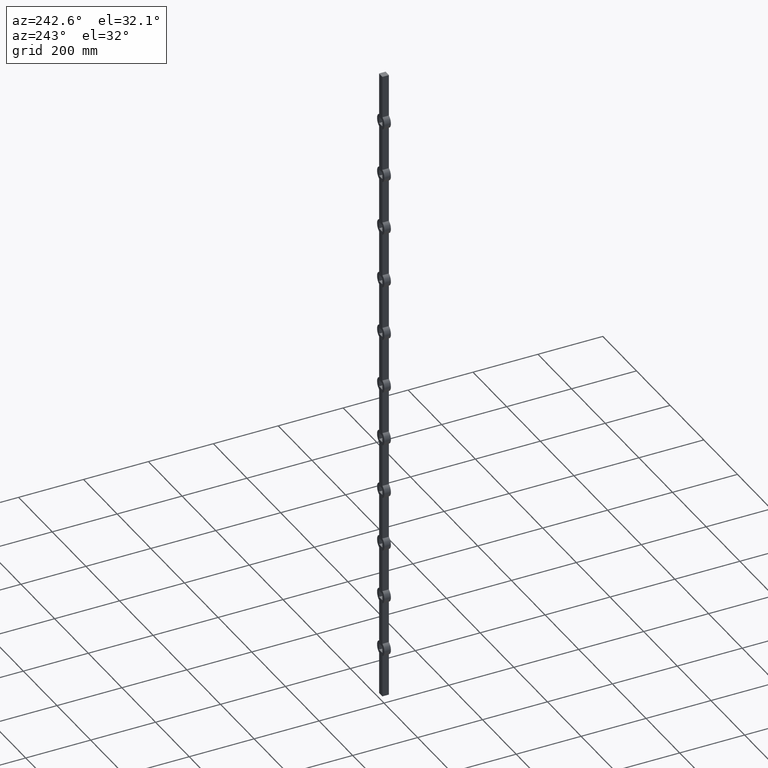
[diagram: clean part render]
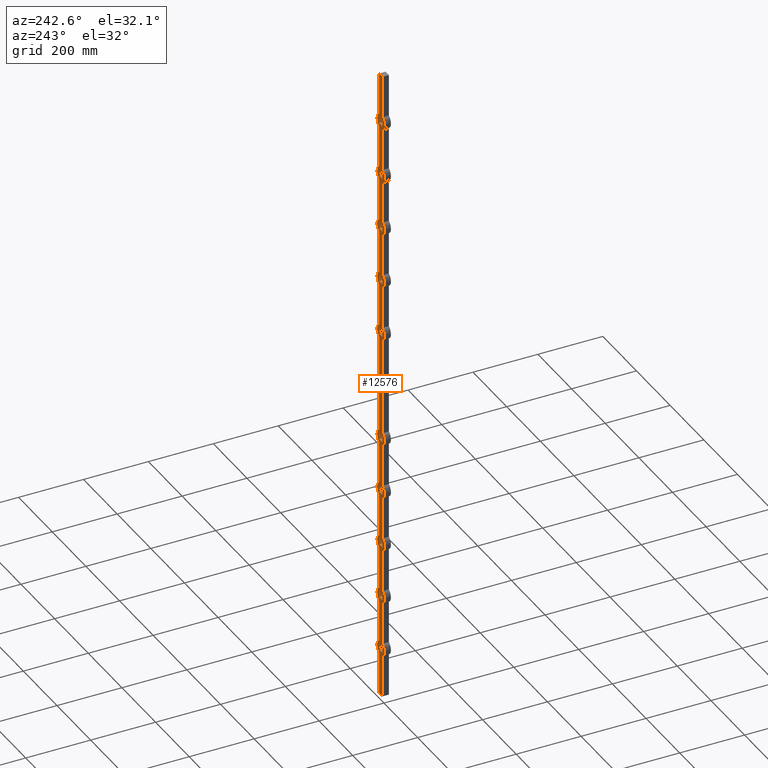
[diagram: same view with one face highlighted and labeled with its STEP entity id]
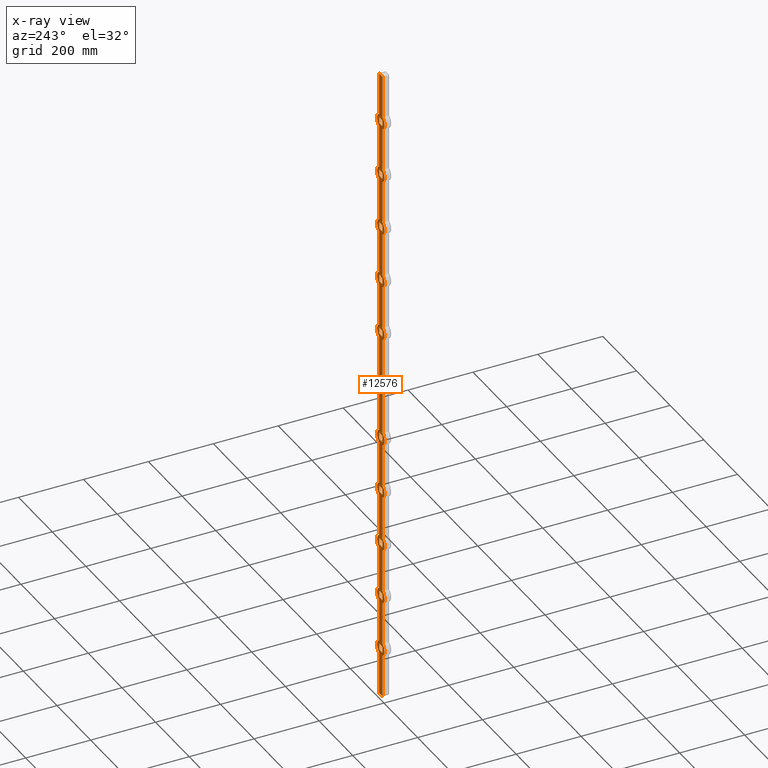
[diagram: x-ray of the same camera — body ghosted, the highlighted face saturated]
A machine part, auxiliary view. The second image highlights one B-rep face of the part: STEP entity #12576.
The next image is the same camera in x-ray: the body ghosted, the highlighted face saturated — about 0% of this face is hidden behind the body in this view.
In plain terms, the highlighted planar face has unit normal (0, -1, 0).
Its self-contained STEP definition (entity closure, byte-faithful):
#6 = CARTESIAN_POINT ( 'NONE',  ( -10.00000000000001066, 10.00000000000000000, -520.0000000000001137 ) ) ;
#15 = CARTESIAN_POINT ( 'NONE',  ( -9.999999999999998224, 10.00000000000000000, 869.5959179422653733 ) ) ;
#21 = CIRCLE ( 'NONE', #10054, 21.99999999999999289 ) ;
#22 = ORIENTED_EDGE ( 'NONE', *, *, #1915, .T. ) ;
#47 = CARTESIAN_POINT ( 'NONE',  ( -9.999999999999998224, 10.00000000000000000, 19.59591794226531647 ) ) ;
#64 = LINE ( 'NONE', #3754, #995 ) ;
#76 = EDGE_LOOP ( 'NONE', ( #5877, #10774, #7319, #6694 ) ) ;
#80 = CARTESIAN_POINT ( 'NONE',  ( -10.00000000000000888, 10.00000000000000000, 350.0000000000000000 ) ) ;
#91 = EDGE_CURVE ( 'NONE', #2908, #1591, #5186, .T. ) ;
#93 = CARTESIAN_POINT ( 'NONE',  ( 10.00000000000000533, 9.999999999999998224, -690.0000000000000000 ) ) ;
#102 = VECTOR ( 'NONE', #3751, 1000.000000000000000 ) ;
#123 = CARTESIAN_POINT ( 'NONE',  ( 9.999999999999998224, 9.999999999999998224, -830.4040820577347404 ) ) ;
#125 = CARTESIAN_POINT ( 'NONE',  ( 0.000000000000000000, 10.00000000000000000, 679.9999999999998863 ) ) ;
#147 = EDGE_CURVE ( 'NONE', #9268, #7335, #11876, .T. ) ;
#154 = CARTESIAN_POINT ( 'NONE',  ( -9.999999999999984013, 10.00000000000000000, 359.5959179422654302 ) ) ;
#234 = CARTESIAN_POINT ( 'NONE',  ( -9.999999999999998224, 9.999999999999998224, -1000.000000000000000 ) ) ;
#269 = ORIENTED_EDGE ( 'NONE', *, *, #489, .T. ) ;
#289 = ORIENTED_EDGE ( 'NONE', *, *, #6513, .F. ) ;
#291 = CARTESIAN_POINT ( 'NONE',  ( -10.00000000000000888, 10.00000000000000000, -500.0000000000001137 ) ) ;
#326 = ORIENTED_EDGE ( 'NONE', *, *, #2700, .F. ) ;
#331 = VERTEX_POINT ( 'NONE', #4124 ) ;
#336 = VERTEX_POINT ( 'NONE', #9042 ) ;
#342 = VERTEX_POINT ( 'NONE', #9125 ) ;
#360 = DIRECTION ( 'NONE',  ( -1.000000000000000000, -0.000000000000000000, -0.000000000000000000 ) ) ;
#404 = EDGE_CURVE ( 'NONE', #1836, #4101, #10203, .T. ) ;
#469 = VERTEX_POINT ( 'NONE', #7280 ) ;
#489 = EDGE_CURVE ( 'NONE', #331, #469, #12150, .T. ) ;
#533 = CARTESIAN_POINT ( 'NONE',  ( -10.00000000000001066, 10.00000000000000000, -860.0000000000002274 ) ) ;
#548 = VERTEX_POINT ( 'NONE', #9704 ) ;
#586 = LINE ( 'NONE', #1074, #12307 ) ;
#604 = LINE ( 'NONE', #4681, #10044 ) ;
#650 = FACE_BOUND ( 'NONE', #7894, .T. ) ;
#651 = CARTESIAN_POINT ( 'NONE',  ( -9.999999999999998224, 9.999999999999998224, 1000.000000000000000 ) ) ;
#666 = CARTESIAN_POINT ( 'NONE',  ( 9.999999999999998224, 9.999999999999998224, 830.4040820577345130 ) ) ;
#671 = LINE ( 'NONE', #8496, #8916 ) ;
#755 = VERTEX_POINT ( 'NONE', #11185 ) ;
#791 = CARTESIAN_POINT ( 'NONE',  ( 9.999999999999998224, 9.999999999999998224, 1000.000000000000000 ) ) ;
#792 = ORIENTED_EDGE ( 'NONE', *, *, #6119, .T. ) ;
#793 = DIRECTION ( 'NONE',  ( 0.000000000000000000, 1.000000000000000000, 0.000000000000000000 ) ) ;
#794 = VERTEX_POINT ( 'NONE', #5424 ) ;
#799 = EDGE_CURVE ( 'NONE', #2013, #6521, #11122, .T. ) ;
#830 = AXIS2_PLACEMENT_3D ( 'NONE', #2986, #4872, #12571 ) ;
#842 = VERTEX_POINT ( 'NONE', #12213 ) ;
#862 = DIRECTION ( 'NONE',  ( -8.673617379884028076E-17, -0.000000000000000000, -1.000000000000000000 ) ) ;
#873 = CARTESIAN_POINT ( 'NONE',  ( -10.00000000000000888, 10.00000000000000000, -670.0000000000000000 ) ) ;
#881 = DIRECTION ( 'NONE',  ( -1.000000000000000000, -0.000000000000000000, -0.000000000000000000 ) ) ;
#885 = CARTESIAN_POINT ( 'NONE',  ( -9.999999999999984013, 10.00000000000000000, 660.4040820577345130 ) ) ;
#889 = PLANE ( 'NONE',  #8035 ) ;
#914 = EDGE_CURVE ( 'NONE', #6564, #9441, #604, .T. ) ;
#921 = CARTESIAN_POINT ( 'NONE',  ( 0.000000000000000000, 10.00000000000000000, 510.0000000000000000 ) ) ;
#933 = EDGE_CURVE ( 'NONE', #12251, #10744, #8205, .T. ) ;
#937 = AXIS2_PLACEMENT_3D ( 'NONE', #2185, #4967, #2058 ) ;
#964 = DIRECTION ( 'NONE',  ( -0.000000000000000000, -0.000000000000000000, -1.000000000000000000 ) ) ;
#980 = CARTESIAN_POINT ( 'NONE',  ( 9.999999999999998224, 9.999999999999998224, 1000.000000000000000 ) ) ;
#995 = VECTOR ( 'NONE', #8671, 1000.000000000000000 ) ;
#1037 = CARTESIAN_POINT ( 'NONE',  ( 10.00000000000000888, 10.00000000000000000, -840.0000000000002274 ) ) ;
#1049 = CARTESIAN_POINT ( 'NONE',  ( 0.000000000000000000, 10.00000000000000000, 850.0000000000000000 ) ) ;
#1069 = EDGE_CURVE ( 'NONE', #10219, #10292, #6548, .T. ) ;
#1074 = CARTESIAN_POINT ( 'NONE',  ( -9.999999999999998224, 9.999999999999998224, 1000.000000000000000 ) ) ;
#1079 = DIRECTION ( 'NONE',  ( -8.673617379884028076E-17, -0.000000000000000000, -1.000000000000000000 ) ) ;
#1105 = VERTEX_POINT ( 'NONE', #2823 ) ;
#1125 = DIRECTION ( 'NONE',  ( -0.000000000000000000, -0.000000000000000000, -1.000000000000000000 ) ) ;
#1128 = ORIENTED_EDGE ( 'NONE', *, *, #1199, .F. ) ;
#1163 = VERTEX_POINT ( 'NONE', #10730 ) ;
#1199 = EDGE_CURVE ( 'NONE', #1105, #6564, #4881, .T. ) ;
#1211 = CARTESIAN_POINT ( 'NONE',  ( 0.000000000000000000, 10.00000000000000000, -170.0000000000000284 ) ) ;
#1230 = ORIENTED_EDGE ( 'NONE', *, *, #1069, .F. ) ;
#1247 = EDGE_CURVE ( 'NONE', #842, #11132, #586, .T. ) ;
#1252 = VERTEX_POINT ( 'NONE', #80 ) ;
#1264 = ORIENTED_EDGE ( 'NONE', *, *, #3687, .T. ) ;
#1287 = VERTEX_POINT ( 'NONE', #6098 ) ;
#1304 = ORIENTED_EDGE ( 'NONE', *, *, #9949, .T. ) ;
#1424 = AXIS2_PLACEMENT_3D ( 'NONE', #6005, #10036, #2293 ) ;
#1426 = EDGE_CURVE ( 'NONE', #12622, #9033, #6880, .T. ) ;
#1504 = VECTOR ( 'NONE', #2701, 1000.000000000000000 ) ;
#1534 = VERTEX_POINT ( 'NONE', #1037 ) ;
#1542 = VERTEX_POINT ( 'NONE', #10817 ) ;
#1591 = VERTEX_POINT ( 'NONE', #93 ) ;
#1615 = VECTOR ( 'NONE', #11307, 1000.000000000000000 ) ;
#1627 = VECTOR ( 'NONE', #7764, 1000.000000000000000 ) ;
#1633 = VERTEX_POINT ( 'NONE', #6070 ) ;
#1635 = VERTEX_POINT ( 'NONE', #7050 ) ;
#1650 = ORIENTED_EDGE ( 'NONE', *, *, #7482, .T. ) ;
#1656 = ORIENTED_EDGE ( 'NONE', *, *, #4942, .T. ) ;
#1685 = DIRECTION ( 'NONE',  ( 0.000000000000000000, 1.000000000000000000, 0.000000000000000000 ) ) ;
#1703 = ORIENTED_EDGE ( 'NONE', *, *, #5218, .F. ) ;
#1716 = ORIENTED_EDGE ( 'NONE', *, *, #9656, .F. ) ;
#1719 = EDGE_CURVE ( 'NONE', #10984, #4602, #6108, .T. ) ;
#1737 = EDGE_LOOP ( 'NONE', ( #10340, #1716, #12464, #9602 ) ) ;
#1751 = VECTOR ( 'NONE', #12327, 1000.000000000000000 ) ;
#1767 = LINE ( 'NONE', #3762, #8279 ) ;
#1798 = CARTESIAN_POINT ( 'NONE',  ( 9.999999999999998224, 9.999999999999998224, 1000.000000000000000 ) ) ;
#1800 = CARTESIAN_POINT ( 'NONE',  ( 10.00000000000000888, 10.00000000000000000, -500.0000000000001137 ) ) ;
#1834 = CARTESIAN_POINT ( 'NONE',  ( -9.999999999999998224, 9.999999999999998224, 1000.000000000000000 ) ) ;
#1836 = VERTEX_POINT ( 'NONE', #12052 ) ;
#1871 = DIRECTION ( 'NONE',  ( -0.000000000000000000, -0.000000000000000000, -1.000000000000000000 ) ) ;
#1873 = ORIENTED_EDGE ( 'NONE', *, *, #5207, .F. ) ;
#1894 = EDGE_CURVE ( 'NONE', #7240, #6918, #10641, .T. ) ;
#1899 = DIRECTION ( 'NONE',  ( 0.000000000000000000, -1.000000000000000000, 0.000000000000000000 ) ) ;
#1910 = LINE ( 'NONE', #2104, #4347 ) ;
#1915 = EDGE_CURVE ( 'NONE', #3246, #1633, #5462, .T. ) ;
#1934 = EDGE_CURVE ( 'NONE', #7589, #12622, #9743, .T. ) ;
#1966 = ORIENTED_EDGE ( 'NONE', *, *, #3924, .F. ) ;
#1972 = CARTESIAN_POINT ( 'NONE',  ( -10.00000000000000888, 10.00000000000000000, -160.0000000000000284 ) ) ;
#2012 = VECTOR ( 'NONE', #1079, 1000.000000000000000 ) ;
#2013 = VERTEX_POINT ( 'NONE', #123 ) ;
#2054 = DIRECTION ( 'NONE',  ( 8.673617379884028076E-17, 0.000000000000000000, 1.000000000000000000 ) ) ;
#2056 = LINE ( 'NONE', #533, #3412 ) ;
#2058 = DIRECTION ( 'NONE',  ( 0.000000000000000000, 0.000000000000000000, 1.000000000000000000 ) ) ;
#2064 = EDGE_LOOP ( 'NONE', ( #10887, #7818, #7201, #7392 ) ) ;
#2074 = EDGE_CURVE ( 'NONE', #1534, #10793, #9891, .T. ) ;
#2086 = FACE_BOUND ( 'NONE', #7606, .T. ) ;
#2104 = CARTESIAN_POINT ( 'NONE',  ( -10.00000000000001066, 10.00000000000000000, 499.9999999999999432 ) ) ;
#2106 = VERTEX_POINT ( 'NONE', #8089 ) ;
#2112 = DIRECTION ( 'NONE',  ( 1.000000000000000000, 0.000000000000000000, 0.000000000000000000 ) ) ;
#2118 = AXIS2_PLACEMENT_3D ( 'NONE', #8196, #2408, #9183 ) ;
#2137 = CARTESIAN_POINT ( 'NONE',  ( 10.00000000000000533, 9.999999999999998224, -520.0000000000000000 ) ) ;
#2144 = CARTESIAN_POINT ( 'NONE',  ( -9.999999999999998224, 9.999999999999998224, 1000.000000000000000 ) ) ;
#2170 = ORIENTED_EDGE ( 'NONE', *, *, #1426, .T. ) ;
#2182 = ORIENTED_EDGE ( 'NONE', *, *, #8909, .T. ) ;
#2185 = CARTESIAN_POINT ( 'NONE',  ( 0.000000000000000000, 10.00000000000000000, -510.0000000000001137 ) ) ;
#2233 = FACE_BOUND ( 'NONE', #6440, .T. ) ;
#2234 = CARTESIAN_POINT ( 'NONE',  ( 9.999999999999998224, 9.999999999999998224, 1000.000000000000000 ) ) ;
#2247 = DIRECTION ( 'NONE',  ( -1.000000000000000000, -0.000000000000000000, -0.000000000000000000 ) ) ;
#2254 = LINE ( 'NONE', #3551, #1615 ) ;
#2263 = CARTESIAN_POINT ( 'NONE',  ( -10.00000000000000888, 10.00000000000000000, 520.0000000000000000 ) ) ;
#2273 = ORIENTED_EDGE ( 'NONE', *, *, #5063, .F. ) ;
#2278 = VECTOR ( 'NONE', #6091, 1000.000000000000000 ) ;
#2287 = VERTEX_POINT ( 'NONE', #10142 ) ;
#2291 = CARTESIAN_POINT ( 'NONE',  ( -9.999999999999998224, 9.999999999999998224, 1000.000000000000000 ) ) ;
#2293 = DIRECTION ( 'NONE',  ( 0.000000000000000000, 0.000000000000000000, 1.000000000000000000 ) ) ;
#2309 = DIRECTION ( 'NONE',  ( 1.000000000000000000, 0.000000000000000000, 0.000000000000000000 ) ) ;
#2339 = EDGE_LOOP ( 'NONE', ( #4428, #326, #1966, #11974 ) ) ;
#2374 = VECTOR ( 'NONE', #7251, 1000.000000000000000 ) ;
#2408 = DIRECTION ( 'NONE',  ( 0.000000000000000000, 1.000000000000000000, 0.000000000000000000 ) ) ;
#2413 = VERTEX_POINT ( 'NONE', #885 ) ;
#2417 = LINE ( 'NONE', #9550, #9839 ) ;
#2418 = VECTOR ( 'NONE', #2247, 1000.000000000000000 ) ;
#2437 = DIRECTION ( 'NONE',  ( -0.000000000000000000, -0.000000000000000000, -1.000000000000000000 ) ) ;
#2441 = DIRECTION ( 'NONE',  ( 1.000000000000000000, 0.000000000000000000, 0.000000000000000000 ) ) ;
#2462 = DIRECTION ( 'NONE',  ( -1.000000000000000000, -0.000000000000000000, -0.000000000000000000 ) ) ;
#2475 = DIRECTION ( 'NONE',  ( -1.000000000000000000, -0.000000000000000000, -0.000000000000000000 ) ) ;
#2479 = VECTOR ( 'NONE', #4701, 1000.000000000000000 ) ;
#2497 = AXIS2_PLACEMENT_3D ( 'NONE', #921, #793, #3756 ) ;
#2504 = DIRECTION ( 'NONE',  ( -1.000000000000000000, -0.000000000000000000, -0.000000000000000000 ) ) ;
#2514 = EDGE_CURVE ( 'NONE', #1542, #10371, #6390, .T. ) ;
#2523 = LINE ( 'NONE', #11417, #1751 ) ;
#2539 = CARTESIAN_POINT ( 'NONE',  ( -10.00000000000001066, 10.00000000000000000, 840.0000000000000000 ) ) ;
#2560 = LINE ( 'NONE', #4187, #12542 ) ;
#2602 = CARTESIAN_POINT ( 'NONE',  ( 9.999999999999998224, 9.999999999999998224, 19.59591794226531647 ) ) ;
#2676 = VECTOR ( 'NONE', #862, 1000.000000000000000 ) ;
#2690 = VERTEX_POINT ( 'NONE', #6656 ) ;
#2693 = VECTOR ( 'NONE', #964, 1000.000000000000000 ) ;
#2700 = EDGE_CURVE ( 'NONE', #10495, #9701, #3662, .T. ) ;
#2701 = DIRECTION ( 'NONE',  ( -1.000000000000000000, -0.000000000000000000, -0.000000000000000000 ) ) ;
#2709 = VECTOR ( 'NONE', #12358, 1000.000000000000000 ) ;
#2732 = LINE ( 'NONE', #9551, #102 ) ;
#2810 = CARTESIAN_POINT ( 'NONE',  ( -10.00000000000001066, 10.00000000000000000, -10.00000000000012079 ) ) ;
#2823 = CARTESIAN_POINT ( 'NONE',  ( -10.00000000000000888, 10.00000000000000000, 860.0000000000000000 ) ) ;
#2847 = VECTOR ( 'NONE', #7499, 1000.000000000000000 ) ;
#2859 = CARTESIAN_POINT ( 'NONE',  ( 10.00000000000000711, 10.00000000000000000, 329.9999999999999432 ) ) ;
#2878 = VECTOR ( 'NONE', #1125, 1000.000000000000000 ) ;
#2879 = CARTESIAN_POINT ( 'NONE',  ( 10.00000000000000711, 10.00000000000000000, 499.9999999999999432 ) ) ;
#2880 = VERTEX_POINT ( 'NONE', #11977 ) ;
#2899 = ORIENTED_EDGE ( 'NONE', *, *, #147, .F. ) ;
#2908 = VERTEX_POINT ( 'NONE', #3310 ) ;
#2911 = CARTESIAN_POINT ( 'NONE',  ( -10.00000000000000888, 10.00000000000000000, 179.9999999999999432 ) ) ;
#2969 = EDGE_LOOP ( 'NONE', ( #3320, #2899, #8113, #4790 ) ) ;
#2972 = DIRECTION ( 'NONE',  ( -8.673617379884028076E-17, -0.000000000000000000, -1.000000000000000000 ) ) ;
#2982 = CARTESIAN_POINT ( 'NONE',  ( -10.00000000000001066, 10.00000000000000000, 669.9999999999998863 ) ) ;
#2986 = CARTESIAN_POINT ( 'NONE',  ( 0.000000000000000000, 10.00000000000000000, 339.9999999999999432 ) ) ;
#2998 = LINE ( 'NONE', #12279, #11027 ) ;
#3001 = VECTOR ( 'NONE', #9887, 1000.000000000000000 ) ;
#3015 = CARTESIAN_POINT ( 'NONE',  ( -10.00000000000001066, 10.00000000000000000, -350.0000000000002274 ) ) ;
#3023 = LINE ( 'NONE', #12270, #2709 ) ;
#3036 = LINE ( 'NONE', #9523, #10580 ) ;
#3049 = VECTOR ( 'NONE', #2112, 1000.000000000000000 ) ;
#3061 = DIRECTION ( 'NONE',  ( -8.673617379884028076E-17, -0.000000000000000000, -1.000000000000000000 ) ) ;
#3071 = DIRECTION ( 'NONE',  ( 0.000000000000000000, 1.000000000000000000, 0.000000000000000000 ) ) ;
#3121 = EDGE_CURVE ( 'NONE', #7335, #2106, #9717, .T. ) ;
#3142 = CARTESIAN_POINT ( 'NONE',  ( -10.00000000000001066, 10.00000000000000000, 669.9999999999998863 ) ) ;
#3146 = LINE ( 'NONE', #651, #12201 ) ;
#3155 = CIRCLE ( 'NONE', #11676, 21.99999999999999289 ) ;
#3205 = ORIENTED_EDGE ( 'NONE', *, *, #10785, .F. ) ;
#3206 = DIRECTION ( 'NONE',  ( -0.000000000000000000, -0.000000000000000000, -1.000000000000000000 ) ) ;
#3243 = AXIS2_PLACEMENT_3D ( 'NONE', #12400, #1685, #9496 ) ;
#3246 = VERTEX_POINT ( 'NONE', #3753 ) ;
#3272 = CARTESIAN_POINT ( 'NONE',  ( 0.000000000000000000, 10.00000000000000000, -680.0000000000000000 ) ) ;
#3290 = VECTOR ( 'NONE', #11771, 1000.000000000000000 ) ;
#3310 = CARTESIAN_POINT ( 'NONE',  ( 10.00000000000000888, 10.00000000000000000, -670.0000000000000000 ) ) ;
#3312 = VECTOR ( 'NONE', #7677, 1000.000000000000000 ) ;
#3315 = LINE ( 'NONE', #11945, #10570 ) ;
#3320 = ORIENTED_EDGE ( 'NONE', *, *, #3121, .F. ) ;
#3339 = LINE ( 'NONE', #7953, #2418 ) ;
#3360 = ORIENTED_EDGE ( 'NONE', *, *, #3776, .T. ) ;
#3364 = DIRECTION ( 'NONE',  ( 0.000000000000000000, 1.000000000000000000, 0.000000000000000000 ) ) ;
#3367 = CARTESIAN_POINT ( 'NONE',  ( -10.00000000000000888, 10.00000000000000000, -330.0000000000001705 ) ) ;
#3382 = EDGE_LOOP ( 'NONE', ( #10378, #3639, #10628, #7144 ) ) ;
#3386 = DIRECTION ( 'NONE',  ( -1.000000000000000000, -0.000000000000000000, -0.000000000000000000 ) ) ;
#3393 = AXIS2_PLACEMENT_3D ( 'NONE', #7453, #3705, #5667 ) ;
#3412 = VECTOR ( 'NONE', #3386, 1000.000000000000000 ) ;
#3421 = EDGE_LOOP ( 'NONE', ( #4502, #6684, #1230, #12149, #7266, #10933, #10930, #1656, #7332, #22, #2273, #4583, #5362, #3910, #8202, #12057, #5990, #8544, #8826, #4899, #3205, #8948, #1873, #7516, #3995, #7598, #2182, #3360, #792, #1650, #5247, #1264, #8216, #10150, #3844, #7438, #8438, #4898, #3848, #269, #12317, #3574, #4622, #2170, #7092, #8226, #1304, #10790 ) ) ;
#3454 = EDGE_LOOP ( 'NONE', ( #7915, #10278, #1703, #11301 ) ) ;
#3457 = CARTESIAN_POINT ( 'NONE',  ( -9.999999999999998224, 9.999999999999998224, 1000.000000000000000 ) ) ;
#3510 = VERTEX_POINT ( 'NONE', #10376 ) ;
#3519 = CARTESIAN_POINT ( 'NONE',  ( 9.999999999999998224, 9.999999999999998224, -699.5959179422654870 ) ) ;
#3543 = VERTEX_POINT ( 'NONE', #7374 ) ;
#3550 = VECTOR ( 'NONE', #2475, 1000.000000000000000 ) ;
#3551 = CARTESIAN_POINT ( 'NONE',  ( 9.999999999999998224, 9.999999999999998224, 1000.000000000000000 ) ) ;
#3566 = CARTESIAN_POINT ( 'NONE',  ( -9.999999999999984013, 10.00000000000000000, -869.5959179422656007 ) ) ;
#3574 = ORIENTED_EDGE ( 'NONE', *, *, #12114, .T. ) ;
#3639 = ORIENTED_EDGE ( 'NONE', *, *, #5724, .F. ) ;
#3643 = DIRECTION ( 'NONE',  ( -1.000000000000000000, -0.000000000000000000, -0.000000000000000000 ) ) ;
#3662 = LINE ( 'NONE', #9653, #11101 ) ;
#3663 = DIRECTION ( 'NONE',  ( -0.000000000000000000, -0.000000000000000000, -1.000000000000000000 ) ) ;
#3672 = VERTEX_POINT ( 'NONE', #5746 ) ;
#3683 = DIRECTION ( 'NONE',  ( -8.673617379884028076E-17, -0.000000000000000000, -1.000000000000000000 ) ) ;
#3685 = DIRECTION ( 'NONE',  ( 0.000000000000000000, 1.000000000000000000, 0.000000000000000000 ) ) ;
#3687 = EDGE_CURVE ( 'NONE', #9611, #794, #5597, .T. ) ;
#3705 = DIRECTION ( 'NONE',  ( 0.000000000000000000, 1.000000000000000000, 0.000000000000000000 ) ) ;
#3750 = CARTESIAN_POINT ( 'NONE',  ( -9.999999999999984013, 10.00000000000000000, -699.5959179422654870 ) ) ;
#3751 = DIRECTION ( 'NONE',  ( -1.000000000000000000, -0.000000000000000000, -0.000000000000000000 ) ) ;
#3753 = CARTESIAN_POINT ( 'NONE',  ( -10.00000000000000178, 10.00000000000000000, -189.5959179422654586 ) ) ;
#3754 = CARTESIAN_POINT ( 'NONE',  ( -10.00000000000000888, 10.00000000000000000, -500.0000000000001137 ) ) ;
#3756 = DIRECTION ( 'NONE',  ( 0.000000000000000000, 0.000000000000000000, 1.000000000000000000 ) ) ;
#3758 = DIRECTION ( 'NONE',  ( -0.000000000000000000, -0.000000000000000000, -1.000000000000000000 ) ) ;
#3761 = LINE ( 'NONE', #3457, #9685 ) ;
#3762 = CARTESIAN_POINT ( 'NONE',  ( -10.00000000000001066, 10.00000000000000000, -860.0000000000002274 ) ) ;
#3776 = EDGE_CURVE ( 'NONE', #10966, #8977, #7722, .T. ) ;
#3777 = DIRECTION ( 'NONE',  ( -1.000000000000000000, -0.000000000000000000, -0.000000000000000000 ) ) ;
#3796 = DIRECTION ( 'NONE',  ( 1.000000000000000000, 0.000000000000000000, 0.000000000000000000 ) ) ;
#3844 = ORIENTED_EDGE ( 'NONE', *, *, #10868, .T. ) ;
#3848 = ORIENTED_EDGE ( 'NONE', *, *, #5201, .T. ) ;
#3900 = LINE ( 'NONE', #6631, #2847 ) ;
#3902 = DIRECTION ( 'NONE',  ( 0.000000000000000000, -0.000000000000000000, -1.000000000000000000 ) ) ;
#3904 = VERTEX_POINT ( 'NONE', #4799 ) ;
#3910 = ORIENTED_EDGE ( 'NONE', *, *, #5398, .T. ) ;
#3924 = EDGE_CURVE ( 'NONE', #11293, #10495, #4248, .T. ) ;
#3928 = DIRECTION ( 'NONE',  ( 0.000000000000000000, 1.000000000000000000, 0.000000000000000000 ) ) ;
#3939 = CARTESIAN_POINT ( 'NONE',  ( 0.000000000000000000, 10.00000000000000000, 850.0000000000000000 ) ) ;
#3941 = EDGE_CURVE ( 'NONE', #4602, #10356, #2732, .T. ) ;
#3946 = EDGE_CURVE ( 'NONE', #548, #2880, #9390, .T. ) ;
#3981 = CARTESIAN_POINT ( 'NONE',  ( -9.999999999999984013, 10.00000000000000000, -320.4040820577347404 ) ) ;
#3995 = ORIENTED_EDGE ( 'NONE', *, *, #11678, .T. ) ;
#4012 = EDGE_CURVE ( 'NONE', #4221, #9268, #5583, .T. ) ;
#4040 = AXIS2_PLACEMENT_3D ( 'NONE', #10554, #7797, #4788 ) ;
#4051 = DIRECTION ( 'NONE',  ( 0.000000000000000000, 0.000000000000000000, 1.000000000000000000 ) ) ;
#4101 = VERTEX_POINT ( 'NONE', #10776 ) ;
#4108 = EDGE_CURVE ( 'NONE', #8502, #9952, #11856, .T. ) ;
#4118 = DIRECTION ( 'NONE',  ( 1.000000000000000000, 0.000000000000000000, 0.000000000000000000 ) ) ;
#4124 = CARTESIAN_POINT ( 'NONE',  ( 9.999999999999998224, 9.999999999999998224, -320.4040820577347404 ) ) ;
#4186 = VERTEX_POINT ( 'NONE', #234 ) ;
#4187 = CARTESIAN_POINT ( 'NONE',  ( 9.999999999999998224, 9.999999999999998224, 1000.000000000000000 ) ) ;
#4193 = VECTOR ( 'NONE', #2309, 1000.000000000000000 ) ;
#4196 = DIRECTION ( 'NONE',  ( 1.000000000000000000, 0.000000000000000000, 0.000000000000000000 ) ) ;
#4201 = AXIS2_PLACEMENT_3D ( 'NONE', #1211, #10159, #12178 ) ;
#4202 = VECTOR ( 'NONE', #2054, 1000.000000000000000 ) ;
#4221 = VERTEX_POINT ( 'NONE', #3367 ) ;
#4237 = VECTOR ( 'NONE', #6861, 1000.000000000000000 ) ;
#4248 = LINE ( 'NONE', #1972, #5902 ) ;
#4297 = AXIS2_PLACEMENT_3D ( 'NONE', #125, #3071, #6107 ) ;
#4306 = CIRCLE ( 'NONE', #4040, 22.00000000000002132 ) ;
#4308 = CARTESIAN_POINT ( 'NONE',  ( -10.00000000000000888, 10.00000000000000000, 350.0000000000000000 ) ) ;
#4347 = VECTOR ( 'NONE', #10729, 1000.000000000000000 ) ;
#4381 = AXIS2_PLACEMENT_3D ( 'NONE', #4903, #8633, #11722 ) ;
#4384 = CARTESIAN_POINT ( 'NONE',  ( 10.00000000000000711, 10.00000000000000000, 159.9999999999999147 ) ) ;
#4399 = CARTESIAN_POINT ( 'NONE',  ( -9.999999999999984013, 10.00000000000000000, 490.4040820577345698 ) ) ;
#4400 = EDGE_CURVE ( 'NONE', #9578, #12174, #9080, .T. ) ;
#4402 = VERTEX_POINT ( 'NONE', #4660 ) ;
#4422 = CARTESIAN_POINT ( 'NONE',  ( 10.00000000000000888, 10.00000000000000000, 9.999999999999896971 ) ) ;
#4428 = ORIENTED_EDGE ( 'NONE', *, *, #11091, .F. ) ;
#4433 = DIRECTION ( 'NONE',  ( 0.000000000000000000, 0.000000000000000000, 1.000000000000000000 ) ) ;
#4462 = CARTESIAN_POINT ( 'NONE',  ( 9.999999999999998224, 9.999999999999998224, 1000.000000000000000 ) ) ;
#4465 = DIRECTION ( 'NONE',  ( -0.000000000000000000, -0.000000000000000000, -1.000000000000000000 ) ) ;
#4481 = FACE_BOUND ( 'NONE', #2339, .T. ) ;
#4495 = CARTESIAN_POINT ( 'NONE',  ( -10.00000000000001066, 10.00000000000000000, -10.00000000000012079 ) ) ;
#4502 = ORIENTED_EDGE ( 'NONE', *, *, #11398, .F. ) ;
#4583 = ORIENTED_EDGE ( 'NONE', *, *, #4400, .T. ) ;
#4602 = VERTEX_POINT ( 'NONE', #2137 ) ;
#4622 = ORIENTED_EDGE ( 'NONE', *, *, #1934, .T. ) ;
#4641 = VECTOR ( 'NONE', #2437, 1000.000000000000000 ) ;
#4644 = FACE_BOUND ( 'NONE', #3382, .T. ) ;
#4660 = CARTESIAN_POINT ( 'NONE',  ( -9.999999999999984013, 10.00000000000000000, -529.5959179422656007 ) ) ;
#4681 = CARTESIAN_POINT ( 'NONE',  ( 10.00000000000000711, 10.00000000000000000, 840.0000000000000000 ) ) ;
#4684 = LINE ( 'NONE', #2982, #9544 ) ;
#4701 = DIRECTION ( 'NONE',  ( -8.673617379884028076E-17, -0.000000000000000000, -1.000000000000000000 ) ) ;
#4728 = CARTESIAN_POINT ( 'NONE',  ( -10.00000000000000888, 10.00000000000000000, 9.999999999999896971 ) ) ;
#4788 = DIRECTION ( 'NONE',  ( 0.000000000000000000, 0.000000000000000000, 1.000000000000000000 ) ) ;
#4790 = ORIENTED_EDGE ( 'NONE', *, *, #8302, .F. ) ;
#4793 = CARTESIAN_POINT ( 'NONE',  ( 0.000000000000000000, 10.00000000000000000, -1.110223024625156540E-13 ) ) ;
#4799 = CARTESIAN_POINT ( 'NONE',  ( -10.00000000000001066, 10.00000000000000000, -180.0000000000000568 ) ) ;
#4805 = EDGE_CURVE ( 'NONE', #10032, #7592, #5707, .T. ) ;
#4840 = VERTEX_POINT ( 'NONE', #8814 ) ;
#4841 = DIRECTION ( 'NONE',  ( 0.000000000000000000, 0.000000000000000000, 1.000000000000000000 ) ) ;
#4872 = DIRECTION ( 'NONE',  ( 0.000000000000000000, 1.000000000000000000, 0.000000000000000000 ) ) ;
#4881 = LINE ( 'NONE', #5785, #12007 ) ;
#4893 = DIRECTION ( 'NONE',  ( 0.000000000000000000, 1.000000000000000000, 0.000000000000000000 ) ) ;
#4898 = ORIENTED_EDGE ( 'NONE', *, *, #7488, .T. ) ;
#4899 = ORIENTED_EDGE ( 'NONE', *, *, #9388, .T. ) ;
#4903 = CARTESIAN_POINT ( 'NONE',  ( 0.000000000000000000, 10.00000000000000000, 339.9999999999999432 ) ) ;
#4940 = CARTESIAN_POINT ( 'NONE',  ( 9.999999999999998224, 9.999999999999998224, -529.5959179422656007 ) ) ;
#4941 = FACE_BOUND ( 'NONE', #2064, .T. ) ;
#4942 = EDGE_CURVE ( 'NONE', #842, #8040, #5109, .T. ) ;
#4949 = LINE ( 'NONE', #4462, #4641 ) ;
#4967 = DIRECTION ( 'NONE',  ( 0.000000000000000000, 1.000000000000000000, 0.000000000000000000 ) ) ;
#4990 = EDGE_CURVE ( 'NONE', #6250, #1252, #11492, .T. ) ;
#5010 = DIRECTION ( 'NONE',  ( 0.000000000000000000, 1.000000000000000000, 0.000000000000000000 ) ) ;
#5011 = CARTESIAN_POINT ( 'NONE',  ( 0.000000000000000000, 10.00000000000000000, -170.0000000000000284 ) ) ;
#5063 = EDGE_CURVE ( 'NONE', #9578, #1633, #10409, .T. ) ;
#5081 = AXIS2_PLACEMENT_3D ( 'NONE', #5011, #3928, #10830 ) ;
#5098 = LINE ( 'NONE', #1834, #2693 ) ;
#5099 = VECTOR ( 'NONE', #3643, 1000.000000000000000 ) ;
#5109 = CIRCLE ( 'NONE', #1424, 22.00000000000002132 ) ;
#5134 = LINE ( 'NONE', #2291, #2278 ) ;
#5186 = LINE ( 'NONE', #12365, #2479 ) ;
#5190 = VECTOR ( 'NONE', #1871, 1000.000000000000000 ) ;
#5201 = EDGE_CURVE ( 'NONE', #9605, #331, #671, .T. ) ;
#5207 = EDGE_CURVE ( 'NONE', #7935, #7592, #5098, .T. ) ;
#5209 = CARTESIAN_POINT ( 'NONE',  ( -10.00000000000000888, 10.00000000000000000, 520.0000000000000000 ) ) ;
#5218 = EDGE_CURVE ( 'NONE', #342, #2908, #6020, .T. ) ;
#5222 = EDGE_CURVE ( 'NONE', #10732, #10984, #64, .T. ) ;
#5237 = LINE ( 'NONE', #2859, #2676 ) ;
#5247 = ORIENTED_EDGE ( 'NONE', *, *, #5377, .T. ) ;
#5264 = LINE ( 'NONE', #9721, #11953 ) ;
#5342 = ORIENTED_EDGE ( 'NONE', *, *, #5222, .F. ) ;
#5343 = CARTESIAN_POINT ( 'NONE',  ( -9.999999999999998224, 10.00000000000000000, 830.4040820577345130 ) ) ;
#5344 = LINE ( 'NONE', #3015, #10208 ) ;
#5349 = DIRECTION ( 'NONE',  ( 0.000000000000000000, 1.000000000000000000, 0.000000000000000000 ) ) ;
#5359 = EDGE_CURVE ( 'NONE', #10099, #11008, #7989, .T. ) ;
#5362 = ORIENTED_EDGE ( 'NONE', *, *, #12195, .F. ) ;
#5368 = CARTESIAN_POINT ( 'NONE',  ( 9.999999999999998224, 9.999999999999998224, -869.5959179422656007 ) ) ;
#5377 = EDGE_CURVE ( 'NONE', #3510, #9611, #7519, .T. ) ;
#5398 = EDGE_CURVE ( 'NONE', #336, #6918, #3155, .T. ) ;
#5424 = CARTESIAN_POINT ( 'NONE',  ( 9.999999999999998224, 9.999999999999998224, 320.4040820577345130 ) ) ;
#5442 = ORIENTED_EDGE ( 'NONE', *, *, #5898, .F. ) ;
#5462 = CIRCLE ( 'NONE', #4201, 21.99999999999999289 ) ;
#5463 = CARTESIAN_POINT ( 'NONE',  ( 0.000000000000000000, 10.00000000000000000, -850.0000000000002274 ) ) ;
#5467 = CARTESIAN_POINT ( 'NONE',  ( -9.999999999999998224, 9.999999999999998224, 1000.000000000000000 ) ) ;
#5506 = CIRCLE ( 'NONE', #2497, 22.00000000000002132 ) ;
#5516 = CARTESIAN_POINT ( 'NONE',  ( -9.999999999999998224, 10.00000000000000000, -19.59591794226553674 ) ) ;
#5518 = CARTESIAN_POINT ( 'NONE',  ( 0.000000000000000000, 10.00000000000000000, 169.9999999999999432 ) ) ;
#5547 = EDGE_CURVE ( 'NONE', #9243, #9518, #2998, .T. ) ;
#5553 = DIRECTION ( 'NONE',  ( -8.673617379884028076E-17, -0.000000000000000000, -1.000000000000000000 ) ) ;
#5569 = LINE ( 'NONE', #2879, #9841 ) ;
#5583 = LINE ( 'NONE', #6893, #3049 ) ;
#5597 = CIRCLE ( 'NONE', #830, 22.00000000000002132 ) ;
#5630 = ORIENTED_EDGE ( 'NONE', *, *, #11476, .F. ) ;
#5657 = VERTEX_POINT ( 'NONE', #2602 ) ;
#5667 = DIRECTION ( 'NONE',  ( 0.000000000000000000, 0.000000000000000000, 1.000000000000000000 ) ) ;
#5707 = CIRCLE ( 'NONE', #9901, 22.00000000000002132 ) ;
#5724 = EDGE_CURVE ( 'NONE', #1287, #8549, #5237, .T. ) ;
#5746 = CARTESIAN_POINT ( 'NONE',  ( -9.999999999999984013, 10.00000000000000000, 699.5959179422653733 ) ) ;
#5785 = CARTESIAN_POINT ( 'NONE',  ( -10.00000000000000888, 10.00000000000000000, 860.0000000000000000 ) ) ;
#5793 = VECTOR ( 'NONE', #3758, 1000.000000000000000 ) ;
#5796 = LINE ( 'NONE', #2234, #10655 ) ;
#5808 = DIRECTION ( 'NONE',  ( -0.000000000000000000, -0.000000000000000000, -1.000000000000000000 ) ) ;
#5809 = CIRCLE ( 'NONE', #3393, 22.00000000000002132 ) ;
#5871 = LINE ( 'NONE', #5209, #12356 ) ;
#5877 = ORIENTED_EDGE ( 'NONE', *, *, #4108, .F. ) ;
#5898 = EDGE_CURVE ( 'NONE', #7788, #548, #10110, .T. ) ;
#5902 = VECTOR ( 'NONE', #11587, 1000.000000000000000 ) ;
#5990 = ORIENTED_EDGE ( 'NONE', *, *, #11148, .F. ) ;
#6005 = CARTESIAN_POINT ( 'NONE',  ( 0.000000000000000000, 10.00000000000000000, -340.0000000000001705 ) ) ;
#6020 = LINE ( 'NONE', #873, #3312 ) ;
#6023 = CARTESIAN_POINT ( 'NONE',  ( -10.00000000000001066, 10.00000000000000000, 159.9999999999999147 ) ) ;
#6032 = CIRCLE ( 'NONE', #2118, 22.00000000000002132 ) ;
#6070 = CARTESIAN_POINT ( 'NONE',  ( -10.00000000000000178, 10.00000000000000000, -150.4040820577346267 ) ) ;
#6087 = VERTEX_POINT ( 'NONE', #6771 ) ;
#6091 = DIRECTION ( 'NONE',  ( -0.000000000000000000, -0.000000000000000000, -1.000000000000000000 ) ) ;
#6098 = CARTESIAN_POINT ( 'NONE',  ( 10.00000000000000888, 10.00000000000000000, 350.0000000000000000 ) ) ;
#6107 = DIRECTION ( 'NONE',  ( 0.000000000000000000, 0.000000000000000000, 1.000000000000000000 ) ) ;
#6108 = LINE ( 'NONE', #6199, #6402 ) ;
#6115 = CARTESIAN_POINT ( 'NONE',  ( 9.999999999999998224, 9.999999999999998224, -19.59591794226553674 ) ) ;
#6118 = VECTOR ( 'NONE', #2462, 1000.000000000000000 ) ;
#6119 = EDGE_CURVE ( 'NONE', #8977, #2287, #10541, .T. ) ;
#6123 = DIRECTION ( 'NONE',  ( -1.000000000000000000, -0.000000000000000000, -0.000000000000000000 ) ) ;
#6136 = LINE ( 'NONE', #8268, #3550 ) ;
#6141 = DIRECTION ( 'NONE',  ( 8.673617379884028076E-17, 0.000000000000000000, 1.000000000000000000 ) ) ;
#6173 = AXIS2_PLACEMENT_3D ( 'NONE', #12153, #3364, #12081 ) ;
#6183 = VECTOR ( 'NONE', #8971, 1000.000000000000000 ) ;
#6199 = CARTESIAN_POINT ( 'NONE',  ( 10.00000000000000711, 10.00000000000000000, -520.0000000000001137 ) ) ;
#6209 = VECTOR ( 'NONE', #4118, 1000.000000000000000 ) ;
#6250 = VERTEX_POINT ( 'NONE', #10521 ) ;
#6251 = VECTOR ( 'NONE', #7419, 1000.000000000000000 ) ;
#6294 = AXIS2_PLACEMENT_3D ( 'NONE', #8379, #11316, #6616 ) ;
#6307 = VERTEX_POINT ( 'NONE', #791 ) ;
#6390 = LINE ( 'NONE', #2810, #10037 ) ;
#6402 = VECTOR ( 'NONE', #12064, 1000.000000000000000 ) ;
#6425 = DIRECTION ( 'NONE',  ( 0.000000000000000000, 1.000000000000000000, 0.000000000000000000 ) ) ;
#6440 = EDGE_LOOP ( 'NONE', ( #9189, #8608, #7355, #5442 ) ) ;
#6452 = DIRECTION ( 'NONE',  ( 1.000000000000000000, 0.000000000000000000, 0.000000000000000000 ) ) ;
#6456 = CARTESIAN_POINT ( 'NONE',  ( -9.999999999999998224, 9.999999999999998224, 1000.000000000000000 ) ) ;
#6493 = LINE ( 'NONE', #12286, #1627 ) ;
#6513 = EDGE_CURVE ( 'NONE', #10371, #8197, #11916, .T. ) ;
#6521 = VERTEX_POINT ( 'NONE', #5368 ) ;
#6548 = LINE ( 'NONE', #10638, #5190 ) ;
#6564 = VERTEX_POINT ( 'NONE', #7411 ) ;
#6616 = DIRECTION ( 'NONE',  ( 0.000000000000000000, 0.000000000000000000, 1.000000000000000000 ) ) ;
#6631 = CARTESIAN_POINT ( 'NONE',  ( -9.999999999999998224, 9.999999999999998224, 1000.000000000000000 ) ) ;
#6635 = CIRCLE ( 'NONE', #4381, 22.00000000000002132 ) ;
#6642 = CARTESIAN_POINT ( 'NONE',  ( 9.999999999999998224, 9.999999999999998224, 1000.000000000000000 ) ) ;
#6656 = CARTESIAN_POINT ( 'NONE',  ( 10.00000000000000533, 9.999999999999998224, 159.9999999999999147 ) ) ;
#6684 = ORIENTED_EDGE ( 'NONE', *, *, #11551, .T. ) ;
#6694 = ORIENTED_EDGE ( 'NONE', *, *, #9278, .F. ) ;
#6706 = CARTESIAN_POINT ( 'NONE',  ( 10.00000000000000711, 10.00000000000000000, -350.0000000000002274 ) ) ;
#6710 = DIRECTION ( 'NONE',  ( 0.000000000000000000, 1.000000000000000000, 0.000000000000000000 ) ) ;
#6756 = DIRECTION ( 'NONE',  ( -0.000000000000000000, -0.000000000000000000, -1.000000000000000000 ) ) ;
#6771 = CARTESIAN_POINT ( 'NONE',  ( 9.999999999999998224, 9.999999999999998224, 189.5959179422653449 ) ) ;
#6809 = VERTEX_POINT ( 'NONE', #2263 ) ;
#6828 = CARTESIAN_POINT ( 'NONE',  ( 10.00000000000000888, 10.00000000000000000, -160.0000000000000284 ) ) ;
#6861 = DIRECTION ( 'NONE',  ( 8.673617379884028076E-17, 0.000000000000000000, 1.000000000000000000 ) ) ;
#6880 = CIRCLE ( 'NONE', #8092, 22.00000000000002132 ) ;
#6893 = CARTESIAN_POINT ( 'NONE',  ( -10.00000000000000888, 10.00000000000000000, -330.0000000000001705 ) ) ;
#6918 = VERTEX_POINT ( 'NONE', #9118 ) ;
#6939 = VERTEX_POINT ( 'NONE', #4399 ) ;
#6942 = VECTOR ( 'NONE', #8320, 1000.000000000000000 ) ;
#7004 = EDGE_CURVE ( 'NONE', #6087, #11660, #21, .T. ) ;
#7031 = ORIENTED_EDGE ( 'NONE', *, *, #12230, .F. ) ;
#7050 = CARTESIAN_POINT ( 'NONE',  ( -10.00000000000001066, 10.00000000000000000, -690.0000000000001137 ) ) ;
#7051 = VECTOR ( 'NONE', #8719, 1000.000000000000000 ) ;
#7092 = ORIENTED_EDGE ( 'NONE', *, *, #11954, .T. ) ;
#7144 = ORIENTED_EDGE ( 'NONE', *, *, #4990, .F. ) ;
#7201 = ORIENTED_EDGE ( 'NONE', *, *, #9363, .F. ) ;
#7219 = FACE_BOUND ( 'NONE', #76, .T. ) ;
#7240 = VERTEX_POINT ( 'NONE', #7263 ) ;
#7247 = EDGE_CURVE ( 'NONE', #10793, #755, #2056, .T. ) ;
#7251 = DIRECTION ( 'NONE',  ( 8.673617379884028076E-17, 0.000000000000000000, 1.000000000000000000 ) ) ;
#7263 = CARTESIAN_POINT ( 'NONE',  ( -9.999999999999984013, 10.00000000000000000, 320.4040820577345130 ) ) ;
#7266 = ORIENTED_EDGE ( 'NONE', *, *, #8750, .F. ) ;
#7280 = CARTESIAN_POINT ( 'NONE',  ( 9.999999999999998224, 9.999999999999998224, -359.5959179422656575 ) ) ;
#7284 = DIRECTION ( 'NONE',  ( 1.000000000000000000, 0.000000000000000000, 0.000000000000000000 ) ) ;
#7319 = ORIENTED_EDGE ( 'NONE', *, *, #5547, .F. ) ;
#7332 = ORIENTED_EDGE ( 'NONE', *, *, #8401, .F. ) ;
#7335 = VERTEX_POINT ( 'NONE', #8322 ) ;
#7355 = ORIENTED_EDGE ( 'NONE', *, *, #3946, .F. ) ;
#7356 = CARTESIAN_POINT ( 'NONE',  ( 9.999999999999998224, 9.999999999999998224, -150.4040820577346267 ) ) ;
#7374 = CARTESIAN_POINT ( 'NONE',  ( -9.999999999999984013, 10.00000000000000000, 529.5959179422654870 ) ) ;
#7392 = ORIENTED_EDGE ( 'NONE', *, *, #11022, .F. ) ;
#7411 = CARTESIAN_POINT ( 'NONE',  ( 10.00000000000000888, 10.00000000000000000, 860.0000000000000000 ) ) ;
#7419 = DIRECTION ( 'NONE',  ( -0.000000000000000000, -0.000000000000000000, -1.000000000000000000 ) ) ;
#7438 = ORIENTED_EDGE ( 'NONE', *, *, #12010, .T. ) ;
#7453 = CARTESIAN_POINT ( 'NONE',  ( 0.000000000000000000, 10.00000000000000000, 510.0000000000000000 ) ) ;
#7457 = CARTESIAN_POINT ( 'NONE',  ( 9.999999999999998224, 9.999999999999998224, 1000.000000000000000 ) ) ;
#7468 = EDGE_CURVE ( 'NONE', #1163, #4186, #12180, .T. ) ;
#7476 = CARTESIAN_POINT ( 'NONE',  ( -10.00000000000001066, 10.00000000000000000, -180.0000000000000568 ) ) ;
#7482 = EDGE_CURVE ( 'NONE', #2287, #3510, #5506, .T. ) ;
#7488 = EDGE_CURVE ( 'NONE', #10744, #9605, #9175, .T. ) ;
#7499 = DIRECTION ( 'NONE',  ( -0.000000000000000000, -0.000000000000000000, -1.000000000000000000 ) ) ;
#7516 = ORIENTED_EDGE ( 'NONE', *, *, #10069, .F. ) ;
#7519 = LINE ( 'NONE', #6642, #6183 ) ;
#7533 = VECTOR ( 'NONE', #6141, 1000.000000000000000 ) ;
#7589 = VERTEX_POINT ( 'NONE', #4940 ) ;
#7592 = VERTEX_POINT ( 'NONE', #15 ) ;
#7598 = ORIENTED_EDGE ( 'NONE', *, *, #5359, .T. ) ;
#7599 = DIRECTION ( 'NONE',  ( 0.000000000000000000, 0.000000000000000000, 1.000000000000000000 ) ) ;
#7606 = EDGE_LOOP ( 'NONE', ( #10803, #9890, #7031, #289 ) ) ;
#7670 = VECTOR ( 'NONE', #12553, 1000.000000000000000 ) ;
#7677 = DIRECTION ( 'NONE',  ( 1.000000000000000000, 0.000000000000000000, 0.000000000000000000 ) ) ;
#7690 = EDGE_CURVE ( 'NONE', #2690, #7788, #6136, .T. ) ;
#7698 = CARTESIAN_POINT ( 'NONE',  ( 9.999999999999998224, 9.999999999999998224, 1000.000000000000000 ) ) ;
#7722 = CIRCLE ( 'NONE', #10201, 22.00000000000002132 ) ;
#7741 = CARTESIAN_POINT ( 'NONE',  ( -10.00000000000000888, 10.00000000000000000, -840.0000000000002274 ) ) ;
#7747 = DIRECTION ( 'NONE',  ( 8.673617379884028076E-17, 0.000000000000000000, 1.000000000000000000 ) ) ;
#7764 = DIRECTION ( 'NONE',  ( 8.673617379884028076E-17, 0.000000000000000000, 1.000000000000000000 ) ) ;
#7773 = VECTOR ( 'NONE', #8568, 1000.000000000000000 ) ;
#7776 = EDGE_CURVE ( 'NONE', #6939, #3543, #5809, .T. ) ;
#7788 = VERTEX_POINT ( 'NONE', #9501 ) ;
#7797 = DIRECTION ( 'NONE',  ( 0.000000000000000000, 1.000000000000000000, 0.000000000000000000 ) ) ;
#7818 = ORIENTED_EDGE ( 'NONE', *, *, #2074, .F. ) ;
#7822 = CARTESIAN_POINT ( 'NONE',  ( -10.00000000000001066, 10.00000000000000000, -520.0000000000001137 ) ) ;
#7849 = EDGE_CURVE ( 'NONE', #4402, #11132, #4306, .T. ) ;
#7860 = CARTESIAN_POINT ( 'NONE',  ( -10.00000000000000888, 10.00000000000000000, -160.0000000000000284 ) ) ;
#7867 = AXIS2_PLACEMENT_3D ( 'NONE', #4793, #6710, #4841 ) ;
#7894 = EDGE_LOOP ( 'NONE', ( #9998, #10066, #1128, #5630 ) ) ;
#7915 = ORIENTED_EDGE ( 'NONE', *, *, #9714, .F. ) ;
#7922 = CARTESIAN_POINT ( 'NONE',  ( 10.00000000000000533, 9.999999999999998224, 840.0000000000000000 ) ) ;
#7935 = VERTEX_POINT ( 'NONE', #8827 ) ;
#7953 = CARTESIAN_POINT ( 'NONE',  ( -10.00000000000001066, 10.00000000000000000, 840.0000000000000000 ) ) ;
#7979 = LINE ( 'NONE', #4384, #9957 ) ;
#7980 = FACE_BOUND ( 'NONE', #3454, .T. ) ;
#7989 = CIRCLE ( 'NONE', #10137, 22.00000000000002132 ) ;
#8020 = EDGE_CURVE ( 'NONE', #10005, #1542, #8086, .T. ) ;
#8035 = AXIS2_PLACEMENT_3D ( 'NONE', #10757, #1899, #3902 ) ;
#8040 = VERTEX_POINT ( 'NONE', #3981 ) ;
#8086 = LINE ( 'NONE', #12562, #9011 ) ;
#8089 = CARTESIAN_POINT ( 'NONE',  ( -10.00000000000001066, 10.00000000000000000, -350.0000000000002274 ) ) ;
#8092 = AXIS2_PLACEMENT_3D ( 'NONE', #3272, #5349, #9072 ) ;
#8101 = CARTESIAN_POINT ( 'NONE',  ( -10.00000000000000888, 10.00000000000000000, 9.999999999999896971 ) ) ;
#8113 = ORIENTED_EDGE ( 'NONE', *, *, #4012, .F. ) ;
#8118 = DIRECTION ( 'NONE',  ( -0.000000000000000000, -0.000000000000000000, -1.000000000000000000 ) ) ;
#8196 = CARTESIAN_POINT ( 'NONE',  ( 0.000000000000000000, 10.00000000000000000, -680.0000000000000000 ) ) ;
#8197 = VERTEX_POINT ( 'NONE', #4728 ) ;
#8202 = ORIENTED_EDGE ( 'NONE', *, *, #1894, .F. ) ;
#8205 = LINE ( 'NONE', #1798, #5793 ) ;
#8216 = ORIENTED_EDGE ( 'NONE', *, *, #9352, .T. ) ;
#8226 = ORIENTED_EDGE ( 'NONE', *, *, #799, .T. ) ;
#8268 = CARTESIAN_POINT ( 'NONE',  ( -10.00000000000001066, 10.00000000000000000, 159.9999999999999147 ) ) ;
#8279 = VECTOR ( 'NONE', #9431, 1000.000000000000000 ) ;
#8293 = EDGE_LOOP ( 'NONE', ( #9624, #11455, #5342, #10996 ) ) ;
#8302 = EDGE_CURVE ( 'NONE', #2106, #4221, #5344, .T. ) ;
#8309 = EDGE_CURVE ( 'NONE', #10356, #10732, #9094, .T. ) ;
#8320 = DIRECTION ( 'NONE',  ( -0.000000000000000000, -0.000000000000000000, -1.000000000000000000 ) ) ;
#8322 = CARTESIAN_POINT ( 'NONE',  ( 10.00000000000000533, 9.999999999999998224, -350.0000000000001137 ) ) ;
#8328 = CARTESIAN_POINT ( 'NONE',  ( 10.00000000000000533, 9.999999999999998224, -860.0000000000003411 ) ) ;
#8370 = CARTESIAN_POINT ( 'NONE',  ( -10.00000000000001066, 10.00000000000000000, 329.9999999999999432 ) ) ;
#8379 = CARTESIAN_POINT ( 'NONE',  ( 0.000000000000000000, 10.00000000000000000, -340.0000000000001705 ) ) ;
#8401 = EDGE_CURVE ( 'NONE', #3246, #8040, #5134, .T. ) ;
#8410 = VERTEX_POINT ( 'NONE', #154 ) ;
#8438 = ORIENTED_EDGE ( 'NONE', *, *, #933, .T. ) ;
#8466 = VECTOR ( 'NONE', #2441, 1000.000000000000000 ) ;
#8496 = CARTESIAN_POINT ( 'NONE',  ( 9.999999999999998224, 9.999999999999998224, 1000.000000000000000 ) ) ;
#8502 = VERTEX_POINT ( 'NONE', #9262 ) ;
#8544 = ORIENTED_EDGE ( 'NONE', *, *, #7776, .T. ) ;
#8545 = EDGE_CURVE ( 'NONE', #1252, #1287, #10004, .T. ) ;
#8549 = VERTEX_POINT ( 'NONE', #10115 ) ;
#8568 = DIRECTION ( 'NONE',  ( -8.673617379884028076E-17, -0.000000000000000000, -1.000000000000000000 ) ) ;
#8598 = CARTESIAN_POINT ( 'NONE',  ( -9.999999999999984013, 10.00000000000000000, -660.4040820577346267 ) ) ;
#8608 = ORIENTED_EDGE ( 'NONE', *, *, #11362, .F. ) ;
#8633 = DIRECTION ( 'NONE',  ( 0.000000000000000000, 1.000000000000000000, 0.000000000000000000 ) ) ;
#8671 = DIRECTION ( 'NONE',  ( 1.000000000000000000, 0.000000000000000000, 0.000000000000000000 ) ) ;
#8719 = DIRECTION ( 'NONE',  ( -1.000000000000000000, -0.000000000000000000, -0.000000000000000000 ) ) ;
#8739 = LINE ( 'NONE', #7457, #10711 ) ;
#8750 = EDGE_CURVE ( 'NONE', #4402, #12465, #2417, .T. ) ;
#8751 = DIRECTION ( 'NONE',  ( -0.000000000000000000, -0.000000000000000000, -1.000000000000000000 ) ) ;
#8814 = CARTESIAN_POINT ( 'NONE',  ( 9.999999999999998224, 9.999999999999998224, -490.4040820577346835 ) ) ;
#8826 = ORIENTED_EDGE ( 'NONE', *, *, #11888, .F. ) ;
#8827 = CARTESIAN_POINT ( 'NONE',  ( -9.999999999999998224, 9.999999999999998224, 1000.000000000000000 ) ) ;
#8884 = CARTESIAN_POINT ( 'NONE',  ( -10.00000000000001066, 10.00000000000000000, 669.9999999999998863 ) ) ;
#8909 = EDGE_CURVE ( 'NONE', #11008, #10966, #5796, .T. ) ;
#8916 = VECTOR ( 'NONE', #5808, 1000.000000000000000 ) ;
#8948 = ORIENTED_EDGE ( 'NONE', *, *, #4805, .T. ) ;
#8971 = DIRECTION ( 'NONE',  ( -0.000000000000000000, -0.000000000000000000, -1.000000000000000000 ) ) ;
#8977 = VERTEX_POINT ( 'NONE', #10212 ) ;
#8978 = EDGE_CURVE ( 'NONE', #6809, #11874, #5871, .T. ) ;
#9011 = VECTOR ( 'NONE', #3061, 1000.000000000000000 ) ;
#9019 = CARTESIAN_POINT ( 'NONE',  ( 9.999999999999998224, 9.999999999999998224, 150.4040820577345130 ) ) ;
#9033 = VERTEX_POINT ( 'NONE', #3519 ) ;
#9035 = VERTEX_POINT ( 'NONE', #3566 ) ;
#9042 = CARTESIAN_POINT ( 'NONE',  ( -10.00000000000000178, 10.00000000000000000, 150.4040820577345130 ) ) ;
#9072 = DIRECTION ( 'NONE',  ( 0.000000000000000000, 0.000000000000000000, 1.000000000000000000 ) ) ;
#9075 = DIRECTION ( 'NONE',  ( 8.673617379884028076E-17, 0.000000000000000000, 1.000000000000000000 ) ) ;
#9080 = CIRCLE ( 'NONE', #3243, 22.00000000000000355 ) ;
#9094 = LINE ( 'NONE', #7822, #4237 ) ;
#9118 = CARTESIAN_POINT ( 'NONE',  ( -10.00000000000000178, 10.00000000000000000, 189.5959179422653449 ) ) ;
#9125 = CARTESIAN_POINT ( 'NONE',  ( -10.00000000000000888, 10.00000000000000000, -670.0000000000000000 ) ) ;
#9175 = CIRCLE ( 'NONE', #5081, 21.99999999999999289 ) ;
#9179 = DIRECTION ( 'NONE',  ( -0.000000000000000000, -0.000000000000000000, -1.000000000000000000 ) ) ;
#9183 = DIRECTION ( 'NONE',  ( 0.000000000000000000, 0.000000000000000000, 1.000000000000000000 ) ) ;
#9189 = ORIENTED_EDGE ( 'NONE', *, *, #7690, .F. ) ;
#9238 = CARTESIAN_POINT ( 'NONE',  ( 10.00000000000000888, 10.00000000000000000, 690.0000000000000000 ) ) ;
#9243 = VERTEX_POINT ( 'NONE', #11654 ) ;
#9262 = CARTESIAN_POINT ( 'NONE',  ( 10.00000000000000533, 9.999999999999998224, 669.9999999999998863 ) ) ;
#9268 = VERTEX_POINT ( 'NONE', #12613 ) ;
#9278 = EDGE_CURVE ( 'NONE', #9952, #9243, #4684, .T. ) ;
#9337 = LINE ( 'NONE', #8101, #4193 ) ;
#9341 = CARTESIAN_POINT ( 'NONE',  ( 0.000000000000000000, 10.00000000000000000, 679.9999999999998863 ) ) ;
#9352 = EDGE_CURVE ( 'NONE', #794, #6087, #9379, .T. ) ;
#9363 = EDGE_CURVE ( 'NONE', #12572, #1534, #11964, .T. ) ;
#9379 = LINE ( 'NONE', #9836, #2878 ) ;
#9388 = EDGE_CURVE ( 'NONE', #2413, #3672, #11358, .T. ) ;
#9390 = LINE ( 'NONE', #2911, #9706 ) ;
#9392 = CARTESIAN_POINT ( 'NONE',  ( 9.999999999999998224, 9.999999999999998224, 359.5959179422654302 ) ) ;
#9398 = VECTOR ( 'NONE', #6123, 1000.000000000000000 ) ;
#9431 = DIRECTION ( 'NONE',  ( 8.673617379884028076E-17, 0.000000000000000000, 1.000000000000000000 ) ) ;
#9441 = VERTEX_POINT ( 'NONE', #7922 ) ;
#9460 = CARTESIAN_POINT ( 'NONE',  ( 10.00000000000000888, 10.00000000000000000, 520.0000000000000000 ) ) ;
#9496 = DIRECTION ( 'NONE',  ( 0.000000000000000000, 0.000000000000000000, 1.000000000000000000 ) ) ;
#9498 = FACE_BOUND ( 'NONE', #8293, .T. ) ;
#9501 = CARTESIAN_POINT ( 'NONE',  ( -10.00000000000001066, 10.00000000000000000, 159.9999999999999147 ) ) ;
#9518 = VERTEX_POINT ( 'NONE', #9238 ) ;
#9523 = CARTESIAN_POINT ( 'NONE',  ( -10.00000000000001066, 10.00000000000000000, -690.0000000000001137 ) ) ;
#9525 = EDGE_CURVE ( 'NONE', #8549, #6250, #9993, .T. ) ;
#9544 = VECTOR ( 'NONE', #7747, 1000.000000000000000 ) ;
#9550 = CARTESIAN_POINT ( 'NONE',  ( -9.999999999999998224, 9.999999999999998224, 1000.000000000000000 ) ) ;
#9551 = CARTESIAN_POINT ( 'NONE',  ( -10.00000000000001066, 10.00000000000000000, -520.0000000000001137 ) ) ;
#9578 = VERTEX_POINT ( 'NONE', #5516 ) ;
#9602 = ORIENTED_EDGE ( 'NONE', *, *, #12129, .F. ) ;
#9605 = VERTEX_POINT ( 'NONE', #10275 ) ;
#9611 = VERTEX_POINT ( 'NONE', #9392 ) ;
#9624 = ORIENTED_EDGE ( 'NONE', *, *, #3941, .F. ) ;
#9645 = CARTESIAN_POINT ( 'NONE',  ( -9.999999999999984013, 10.00000000000000000, -490.4040820577346835 ) ) ;
#9653 = CARTESIAN_POINT ( 'NONE',  ( 10.00000000000000711, 10.00000000000000000, -180.0000000000000568 ) ) ;
#9656 = EDGE_CURVE ( 'NONE', #11874, #1836, #5569, .T. ) ;
#9685 = VECTOR ( 'NONE', #360, 1000.000000000000000 ) ;
#9701 = VERTEX_POINT ( 'NONE', #11473 ) ;
#9704 = CARTESIAN_POINT ( 'NONE',  ( -10.00000000000000888, 10.00000000000000000, 179.9999999999999432 ) ) ;
#9706 = VECTOR ( 'NONE', #3796, 1000.000000000000000 ) ;
#9714 = EDGE_CURVE ( 'NONE', #1591, #1635, #3036, .T. ) ;
#9717 = LINE ( 'NONE', #12291, #1504 ) ;
#9721 = CARTESIAN_POINT ( 'NONE',  ( 9.999999999999998224, 9.999999999999998224, 1000.000000000000000 ) ) ;
#9735 = CARTESIAN_POINT ( 'NONE',  ( -9.999999999999998224, 9.999999999999998224, 1000.000000000000000 ) ) ;
#9743 = LINE ( 'NONE', #7698, #12438 ) ;
#9781 = DIRECTION ( 'NONE',  ( 8.673617379884028076E-17, 0.000000000000000000, 1.000000000000000000 ) ) ;
#9836 = CARTESIAN_POINT ( 'NONE',  ( 9.999999999999998224, 9.999999999999998224, 1000.000000000000000 ) ) ;
#9839 = VECTOR ( 'NONE', #8751, 1000.000000000000000 ) ;
#9841 = VECTOR ( 'NONE', #3683, 1000.000000000000000 ) ;
#9887 = DIRECTION ( 'NONE',  ( -0.000000000000000000, -0.000000000000000000, -1.000000000000000000 ) ) ;
#9890 = ORIENTED_EDGE ( 'NONE', *, *, #8020, .F. ) ;
#9891 = LINE ( 'NONE', #11740, #2012 ) ;
#9901 = AXIS2_PLACEMENT_3D ( 'NONE', #3939, #11648, #11729 ) ;
#9923 = CARTESIAN_POINT ( 'NONE',  ( -10.00000000000000888, 10.00000000000000000, -840.0000000000002274 ) ) ;
#9941 = EDGE_CURVE ( 'NONE', #9441, #10815, #3339, .T. ) ;
#9949 = EDGE_CURVE ( 'NONE', #6521, #1163, #2560, .T. ) ;
#9952 = VERTEX_POINT ( 'NONE', #3142 ) ;
#9957 = VECTOR ( 'NONE', #12013, 1000.000000000000000 ) ;
#9978 = VECTOR ( 'NONE', #10161, 1000.000000000000000 ) ;
#9993 = LINE ( 'NONE', #8370, #12393 ) ;
#9998 = ORIENTED_EDGE ( 'NONE', *, *, #9941, .F. ) ;
#10004 = LINE ( 'NONE', #4308, #8466 ) ;
#10005 = VERTEX_POINT ( 'NONE', #4422 ) ;
#10032 = VERTEX_POINT ( 'NONE', #5343 ) ;
#10036 = DIRECTION ( 'NONE',  ( 0.000000000000000000, 1.000000000000000000, 0.000000000000000000 ) ) ;
#10037 = VECTOR ( 'NONE', #3777, 1000.000000000000000 ) ;
#10044 = VECTOR ( 'NONE', #5553, 1000.000000000000000 ) ;
#10054 = AXIS2_PLACEMENT_3D ( 'NONE', #5518, #3685, #7599 ) ;
#10066 = ORIENTED_EDGE ( 'NONE', *, *, #914, .F. ) ;
#10069 = EDGE_CURVE ( 'NONE', #6307, #7935, #3761, .T. ) ;
#10086 = EDGE_CURVE ( 'NONE', #10219, #12465, #6032, .T. ) ;
#10099 = VERTEX_POINT ( 'NONE', #10435 ) ;
#10110 = LINE ( 'NONE', #6023, #4202 ) ;
#10115 = CARTESIAN_POINT ( 'NONE',  ( 10.00000000000000533, 9.999999999999998224, 329.9999999999999432 ) ) ;
#10137 = AXIS2_PLACEMENT_3D ( 'NONE', #1049, #5010, #4051 ) ;
#10142 = CARTESIAN_POINT ( 'NONE',  ( 9.999999999999998224, 9.999999999999998224, 529.5959179422654870 ) ) ;
#10150 = ORIENTED_EDGE ( 'NONE', *, *, #7004, .T. ) ;
#10159 = DIRECTION ( 'NONE',  ( 0.000000000000000000, 1.000000000000000000, 0.000000000000000000 ) ) ;
#10161 = DIRECTION ( 'NONE',  ( -0.000000000000000000, -0.000000000000000000, -1.000000000000000000 ) ) ;
#10201 = AXIS2_PLACEMENT_3D ( 'NONE', #9341, #10392, #12289 ) ;
#10203 = LINE ( 'NONE', #12077, #6118 ) ;
#10208 = VECTOR ( 'NONE', #9781, 1000.000000000000000 ) ;
#10212 = CARTESIAN_POINT ( 'NONE',  ( 9.999999999999998224, 9.999999999999998224, 660.4040820577345130 ) ) ;
#10219 = VERTEX_POINT ( 'NONE', #3750 ) ;
#10228 = CARTESIAN_POINT ( 'NONE',  ( -9.999999999999998224, 9.999999999999998224, 1000.000000000000000 ) ) ;
#10239 = EDGE_CURVE ( 'NONE', #3904, #11293, #6493, .T. ) ;
#10249 = EDGE_CURVE ( 'NONE', #469, #4840, #5264, .T. ) ;
#10251 = CIRCLE ( 'NONE', #7867, 22.00000000000000355 ) ;
#10275 = CARTESIAN_POINT ( 'NONE',  ( 9.999999999999998224, 9.999999999999998224, -189.5959179422654586 ) ) ;
#10278 = ORIENTED_EDGE ( 'NONE', *, *, #91, .F. ) ;
#10292 = VERTEX_POINT ( 'NONE', #10911 ) ;
#10340 = ORIENTED_EDGE ( 'NONE', *, *, #404, .F. ) ;
#10356 = VERTEX_POINT ( 'NONE', #6 ) ;
#10371 = VERTEX_POINT ( 'NONE', #12397 ) ;
#10376 = CARTESIAN_POINT ( 'NONE',  ( 9.999999999999998224, 9.999999999999998224, 490.4040820577345698 ) ) ;
#10378 = ORIENTED_EDGE ( 'NONE', *, *, #9525, .F. ) ;
#10392 = DIRECTION ( 'NONE',  ( 0.000000000000000000, 1.000000000000000000, 0.000000000000000000 ) ) ;
#10400 = LINE ( 'NONE', #2144, #3001 ) ;
#10401 = EDGE_CURVE ( 'NONE', #9518, #8502, #3023, .T. ) ;
#10409 = LINE ( 'NONE', #10228, #6942 ) ;
#10435 = CARTESIAN_POINT ( 'NONE',  ( 9.999999999999998224, 9.999999999999998224, 869.5959179422653733 ) ) ;
#10495 = VERTEX_POINT ( 'NONE', #6828 ) ;
#10521 = CARTESIAN_POINT ( 'NONE',  ( -10.00000000000001066, 10.00000000000000000, 329.9999999999999432 ) ) ;
#10541 = LINE ( 'NONE', #980, #3290 ) ;
#10554 = CARTESIAN_POINT ( 'NONE',  ( 0.000000000000000000, 10.00000000000000000, -510.0000000000001137 ) ) ;
#10570 = VECTOR ( 'NONE', #9075, 1000.000000000000000 ) ;
#10580 = VECTOR ( 'NONE', #881, 1000.000000000000000 ) ;
#10628 = ORIENTED_EDGE ( 'NONE', *, *, #8545, .F. ) ;
#10638 = CARTESIAN_POINT ( 'NONE',  ( -9.999999999999998224, 9.999999999999998224, 1000.000000000000000 ) ) ;
#10641 = LINE ( 'NONE', #6456, #6251 ) ;
#10646 = EDGE_CURVE ( 'NONE', #1635, #342, #3315, .T. ) ;
#10655 = VECTOR ( 'NONE', #3206, 1000.000000000000000 ) ;
#10691 = CARTESIAN_POINT ( 'NONE',  ( 0.000000000000000000, 10.00000000000000000, 169.9999999999999432 ) ) ;
#10711 = VECTOR ( 'NONE', #3663, 1000.000000000000000 ) ;
#10729 = DIRECTION ( 'NONE',  ( 8.673617379884028076E-17, 0.000000000000000000, 1.000000000000000000 ) ) ;
#10730 = CARTESIAN_POINT ( 'NONE',  ( 9.999999999999998224, 9.999999999999998224, -1000.000000000000000 ) ) ;
#10732 = VERTEX_POINT ( 'NONE', #291 ) ;
#10744 = VERTEX_POINT ( 'NONE', #7356 ) ;
#10757 = CARTESIAN_POINT ( 'NONE',  ( -9.999999999999998224, 9.999999999999998224, 1000.000000000000000 ) ) ;
#10774 = ORIENTED_EDGE ( 'NONE', *, *, #10401, .F. ) ;
#10776 = CARTESIAN_POINT ( 'NONE',  ( -10.00000000000001066, 10.00000000000000000, 499.9999999999999432 ) ) ;
#10785 = EDGE_CURVE ( 'NONE', #10032, #3672, #12532, .T. ) ;
#10790 = ORIENTED_EDGE ( 'NONE', *, *, #7468, .T. ) ;
#10793 = VERTEX_POINT ( 'NONE', #8328 ) ;
#10803 = ORIENTED_EDGE ( 'NONE', *, *, #2514, .F. ) ;
#10815 = VERTEX_POINT ( 'NONE', #2539 ) ;
#10817 = CARTESIAN_POINT ( 'NONE',  ( 10.00000000000000533, 9.999999999999998224, -10.00000000000023093 ) ) ;
#10830 = DIRECTION ( 'NONE',  ( 0.000000000000000000, 0.000000000000000000, 1.000000000000000000 ) ) ;
#10868 = EDGE_CURVE ( 'NONE', #11660, #5657, #2254, .T. ) ;
#10887 = ORIENTED_EDGE ( 'NONE', *, *, #7247, .F. ) ;
#10891 = DIRECTION ( 'NONE',  ( -0.000000000000000000, -0.000000000000000000, -1.000000000000000000 ) ) ;
#10911 = CARTESIAN_POINT ( 'NONE',  ( -9.999999999999984013, 10.00000000000000000, -830.4040820577347404 ) ) ;
#10930 = ORIENTED_EDGE ( 'NONE', *, *, #1247, .F. ) ;
#10933 = ORIENTED_EDGE ( 'NONE', *, *, #7849, .T. ) ;
#10966 = VERTEX_POINT ( 'NONE', #11471 ) ;
#10984 = VERTEX_POINT ( 'NONE', #1800 ) ;
#10996 = ORIENTED_EDGE ( 'NONE', *, *, #8309, .F. ) ;
#11008 = VERTEX_POINT ( 'NONE', #666 ) ;
#11022 = EDGE_CURVE ( 'NONE', #755, #12572, #1767, .T. ) ;
#11027 = VECTOR ( 'NONE', #6452, 1000.000000000000000 ) ;
#11091 = EDGE_CURVE ( 'NONE', #9701, #3904, #11630, .T. ) ;
#11101 = VECTOR ( 'NONE', #2972, 1000.000000000000000 ) ;
#11122 = CIRCLE ( 'NONE', #11490, 22.00000000000002132 ) ;
#11132 = VERTEX_POINT ( 'NONE', #9645 ) ;
#11148 = EDGE_CURVE ( 'NONE', #6939, #8410, #11481, .T. ) ;
#11185 = CARTESIAN_POINT ( 'NONE',  ( -10.00000000000001066, 10.00000000000000000, -860.0000000000002274 ) ) ;
#11187 = EDGE_CURVE ( 'NONE', #7240, #8410, #6635, .T. ) ;
#11293 = VERTEX_POINT ( 'NONE', #7860 ) ;
#11301 = ORIENTED_EDGE ( 'NONE', *, *, #10646, .F. ) ;
#11307 = DIRECTION ( 'NONE',  ( -0.000000000000000000, -0.000000000000000000, -1.000000000000000000 ) ) ;
#11316 = DIRECTION ( 'NONE',  ( 0.000000000000000000, 1.000000000000000000, 0.000000000000000000 ) ) ;
#11358 = CIRCLE ( 'NONE', #4297, 22.00000000000002132 ) ;
#11362 = EDGE_CURVE ( 'NONE', #2880, #2690, #7979, .T. ) ;
#11398 = EDGE_CURVE ( 'NONE', #9035, #4186, #3146, .T. ) ;
#11417 = CARTESIAN_POINT ( 'NONE',  ( -10.00000000000001066, 10.00000000000000000, 840.0000000000000000 ) ) ;
#11455 = ORIENTED_EDGE ( 'NONE', *, *, #1719, .F. ) ;
#11471 = CARTESIAN_POINT ( 'NONE',  ( 9.999999999999998224, 9.999999999999998224, 699.5959179422653733 ) ) ;
#11473 = CARTESIAN_POINT ( 'NONE',  ( 10.00000000000000533, 9.999999999999998224, -180.0000000000001705 ) ) ;
#11476 = EDGE_CURVE ( 'NONE', #10815, #1105, #2523, .T. ) ;
#11481 = LINE ( 'NONE', #9735, #7670 ) ;
#11490 = AXIS2_PLACEMENT_3D ( 'NONE', #5463, #6425, #4433 ) ;
#11492 = LINE ( 'NONE', #11937, #7533 ) ;
#11551 = EDGE_CURVE ( 'NONE', #9035, #10292, #11773, .T. ) ;
#11587 = DIRECTION ( 'NONE',  ( 1.000000000000000000, 0.000000000000000000, 0.000000000000000000 ) ) ;
#11618 = FACE_OUTER_BOUND ( 'NONE', #3421, .T. ) ;
#11630 = LINE ( 'NONE', #7476, #5099 ) ;
#11648 = DIRECTION ( 'NONE',  ( 0.000000000000000000, 1.000000000000000000, 0.000000000000000000 ) ) ;
#11652 = CARTESIAN_POINT ( 'NONE',  ( 9.999999999999998224, 9.999999999999998224, -660.4040820577346267 ) ) ;
#11654 = CARTESIAN_POINT ( 'NONE',  ( -10.00000000000000888, 10.00000000000000000, 690.0000000000000000 ) ) ;
#11660 = VERTEX_POINT ( 'NONE', #9019 ) ;
#11673 = DIRECTION ( 'NONE',  ( 0.000000000000000000, 0.000000000000000000, 1.000000000000000000 ) ) ;
#11676 = AXIS2_PLACEMENT_3D ( 'NONE', #10691, #4893, #11673 ) ;
#11678 = EDGE_CURVE ( 'NONE', #6307, #10099, #4949, .T. ) ;
#11722 = DIRECTION ( 'NONE',  ( 0.000000000000000000, 0.000000000000000000, 1.000000000000000000 ) ) ;
#11729 = DIRECTION ( 'NONE',  ( 0.000000000000000000, 0.000000000000000000, 1.000000000000000000 ) ) ;
#11740 = CARTESIAN_POINT ( 'NONE',  ( 10.00000000000000711, 10.00000000000000000, -860.0000000000002274 ) ) ;
#11771 = DIRECTION ( 'NONE',  ( -0.000000000000000000, -0.000000000000000000, -1.000000000000000000 ) ) ;
#11773 = CIRCLE ( 'NONE', #6173, 22.00000000000002132 ) ;
#11856 = LINE ( 'NONE', #8884, #9398 ) ;
#11874 = VERTEX_POINT ( 'NONE', #9460 ) ;
#11876 = LINE ( 'NONE', #6706, #7773 ) ;
#11888 = EDGE_CURVE ( 'NONE', #2413, #3543, #3900, .T. ) ;
#11916 = LINE ( 'NONE', #4495, #2374 ) ;
#11932 = CIRCLE ( 'NONE', #937, 22.00000000000002132 ) ;
#11937 = CARTESIAN_POINT ( 'NONE',  ( -10.00000000000001066, 10.00000000000000000, 329.9999999999999432 ) ) ;
#11945 = CARTESIAN_POINT ( 'NONE',  ( -10.00000000000001066, 10.00000000000000000, -690.0000000000001137 ) ) ;
#11953 = VECTOR ( 'NONE', #6756, 1000.000000000000000 ) ;
#11954 = EDGE_CURVE ( 'NONE', #9033, #2013, #8739, .T. ) ;
#11964 = LINE ( 'NONE', #9923, #6209 ) ;
#11974 = ORIENTED_EDGE ( 'NONE', *, *, #10239, .F. ) ;
#11977 = CARTESIAN_POINT ( 'NONE',  ( 10.00000000000000888, 10.00000000000000000, 179.9999999999999432 ) ) ;
#12007 = VECTOR ( 'NONE', #4196, 1000.000000000000000 ) ;
#12010 = EDGE_CURVE ( 'NONE', #5657, #12251, #10251, .T. ) ;
#12013 = DIRECTION ( 'NONE',  ( -8.673617379884028076E-17, -0.000000000000000000, -1.000000000000000000 ) ) ;
#12052 = CARTESIAN_POINT ( 'NONE',  ( 10.00000000000000533, 9.999999999999998224, 500.0000000000000000 ) ) ;
#12057 = ORIENTED_EDGE ( 'NONE', *, *, #11187, .T. ) ;
#12064 = DIRECTION ( 'NONE',  ( -8.673617379884028076E-17, -0.000000000000000000, -1.000000000000000000 ) ) ;
#12075 = FACE_BOUND ( 'NONE', #2969, .T. ) ;
#12077 = CARTESIAN_POINT ( 'NONE',  ( -10.00000000000001066, 10.00000000000000000, 499.9999999999999432 ) ) ;
#12081 = DIRECTION ( 'NONE',  ( 0.000000000000000000, 0.000000000000000000, 1.000000000000000000 ) ) ;
#12114 = EDGE_CURVE ( 'NONE', #4840, #7589, #11932, .T. ) ;
#12129 = EDGE_CURVE ( 'NONE', #4101, #6809, #1910, .T. ) ;
#12149 = ORIENTED_EDGE ( 'NONE', *, *, #10086, .T. ) ;
#12150 = CIRCLE ( 'NONE', #6294, 22.00000000000002132 ) ;
#12153 = CARTESIAN_POINT ( 'NONE',  ( 0.000000000000000000, 10.00000000000000000, -850.0000000000002274 ) ) ;
#12174 = VERTEX_POINT ( 'NONE', #47 ) ;
#12178 = DIRECTION ( 'NONE',  ( 0.000000000000000000, 0.000000000000000000, 1.000000000000000000 ) ) ;
#12180 = LINE ( 'NONE', #12547, #7051 ) ;
#12195 = EDGE_CURVE ( 'NONE', #336, #12174, #10400, .T. ) ;
#12201 = VECTOR ( 'NONE', #4465, 1000.000000000000000 ) ;
#12213 = CARTESIAN_POINT ( 'NONE',  ( -9.999999999999984013, 10.00000000000000000, -359.5959179422656575 ) ) ;
#12230 = EDGE_CURVE ( 'NONE', #8197, #10005, #9337, .T. ) ;
#12251 = VERTEX_POINT ( 'NONE', #6115 ) ;
#12270 = CARTESIAN_POINT ( 'NONE',  ( 10.00000000000000711, 10.00000000000000000, 669.9999999999998863 ) ) ;
#12279 = CARTESIAN_POINT ( 'NONE',  ( -10.00000000000000888, 10.00000000000000000, 690.0000000000000000 ) ) ;
#12286 = CARTESIAN_POINT ( 'NONE',  ( -10.00000000000001066, 10.00000000000000000, -180.0000000000000568 ) ) ;
#12289 = DIRECTION ( 'NONE',  ( 0.000000000000000000, 0.000000000000000000, 1.000000000000000000 ) ) ;
#12291 = CARTESIAN_POINT ( 'NONE',  ( -10.00000000000001066, 10.00000000000000000, -350.0000000000002274 ) ) ;
#12307 = VECTOR ( 'NONE', #10891, 1000.000000000000000 ) ;
#12317 = ORIENTED_EDGE ( 'NONE', *, *, #10249, .T. ) ;
#12327 = DIRECTION ( 'NONE',  ( 8.673617379884028076E-17, 0.000000000000000000, 1.000000000000000000 ) ) ;
#12356 = VECTOR ( 'NONE', #7284, 1000.000000000000000 ) ;
#12358 = DIRECTION ( 'NONE',  ( -8.673617379884028076E-17, -0.000000000000000000, -1.000000000000000000 ) ) ;
#12363 = FACE_BOUND ( 'NONE', #1737, .T. ) ;
#12365 = CARTESIAN_POINT ( 'NONE',  ( 10.00000000000000711, 10.00000000000000000, -690.0000000000001137 ) ) ;
#12393 = VECTOR ( 'NONE', #2504, 1000.000000000000000 ) ;
#12397 = CARTESIAN_POINT ( 'NONE',  ( -10.00000000000001066, 10.00000000000000000, -10.00000000000012079 ) ) ;
#12400 = CARTESIAN_POINT ( 'NONE',  ( 0.000000000000000000, 10.00000000000000000, -1.110223024625156540E-13 ) ) ;
#12438 = VECTOR ( 'NONE', #9179, 1000.000000000000000 ) ;
#12464 = ORIENTED_EDGE ( 'NONE', *, *, #8978, .F. ) ;
#12465 = VERTEX_POINT ( 'NONE', #8598 ) ;
#12532 = LINE ( 'NONE', #5467, #9978 ) ;
#12542 = VECTOR ( 'NONE', #8118, 1000.000000000000000 ) ;
#12547 = CARTESIAN_POINT ( 'NONE',  ( -9.999999999999998224, 9.999999999999998224, -1000.000000000000000 ) ) ;
#12553 = DIRECTION ( 'NONE',  ( -0.000000000000000000, -0.000000000000000000, -1.000000000000000000 ) ) ;
#12562 = CARTESIAN_POINT ( 'NONE',  ( 10.00000000000000711, 10.00000000000000000, -10.00000000000012079 ) ) ;
#12571 = DIRECTION ( 'NONE',  ( 0.000000000000000000, 0.000000000000000000, 1.000000000000000000 ) ) ;
#12572 = VERTEX_POINT ( 'NONE', #7741 ) ;
#12576 = ADVANCED_FACE ( 'NONE', ( #7219, #12363, #4644, #2233, #2086, #4481, #12075, #9498, #7980, #4941, #650, #11618 ), #889, .F. ) ;
#12613 = CARTESIAN_POINT ( 'NONE',  ( 10.00000000000000888, 10.00000000000000000, -330.0000000000001705 ) ) ;
#12622 = VERTEX_POINT ( 'NONE', #11652 ) ;